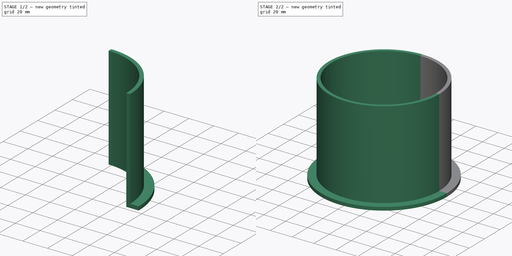
[diagram: build sequence overview — one tinted view per stage of 2, left to right]
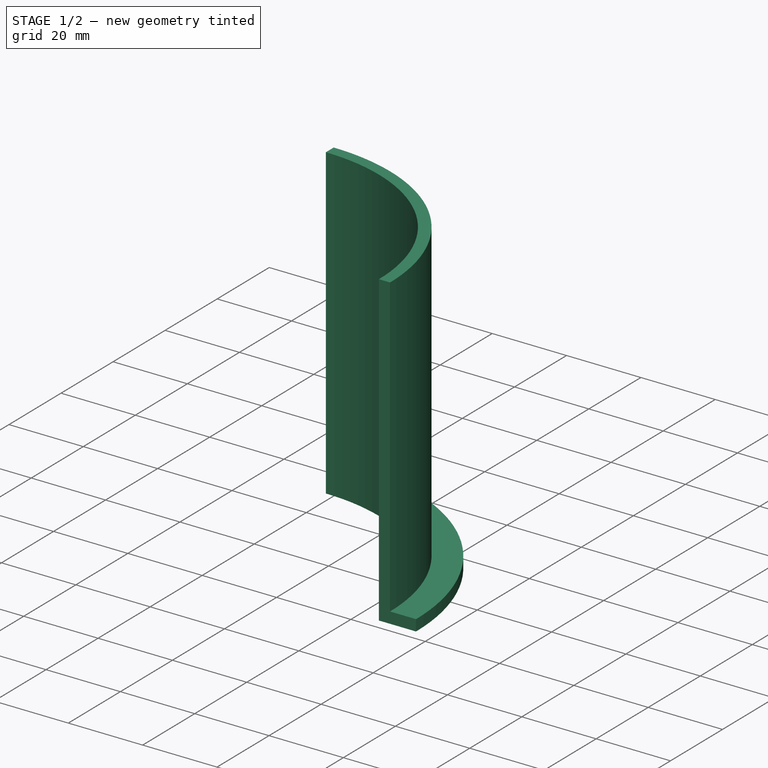
[diagram: stage 1 of 2 — iso view after this stage's code; geometry added in this stage tinted green]
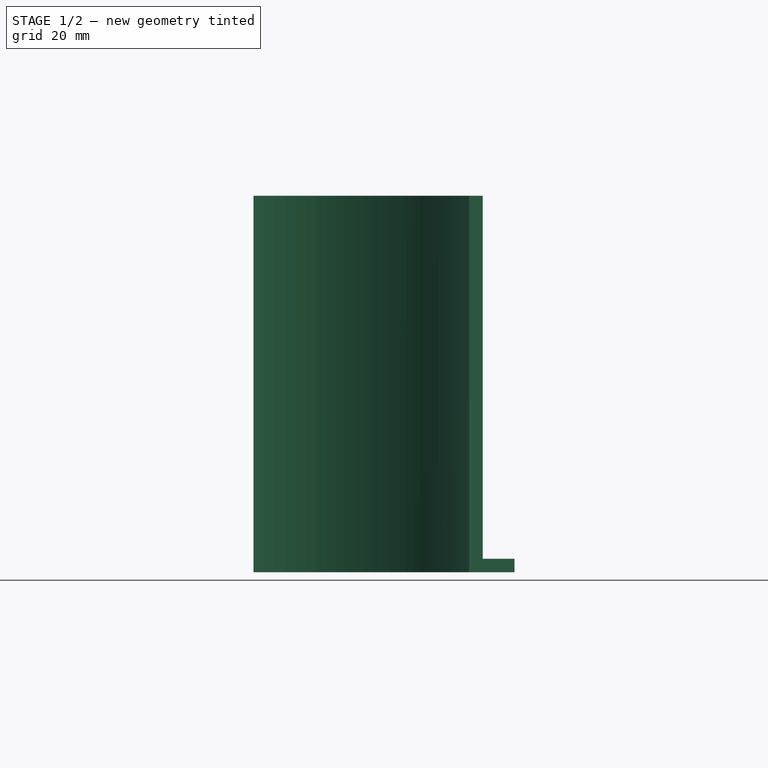
[diagram: stage 1 of 2 — front view after this stage's code; geometry added in this stage tinted green]
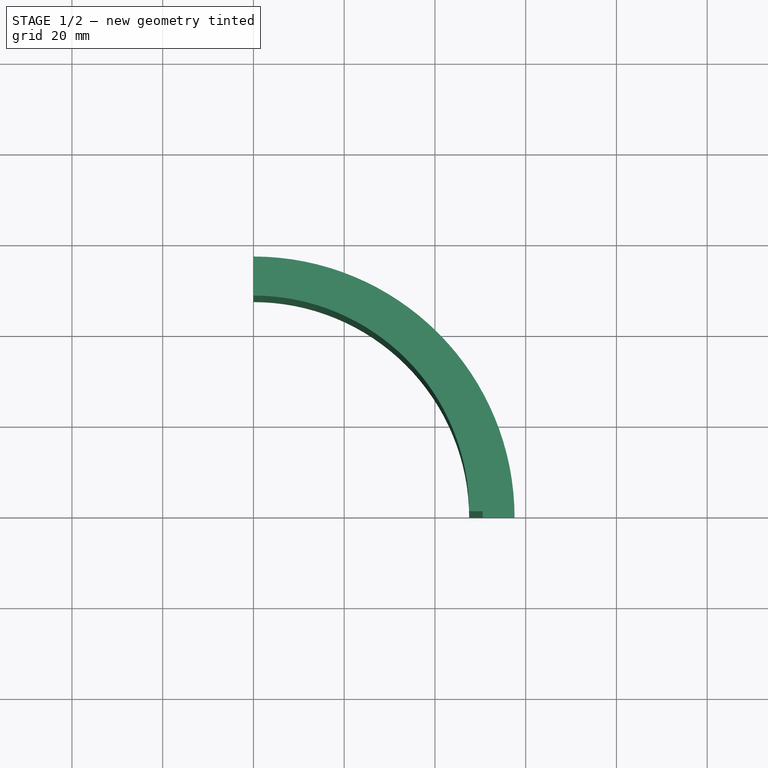
[diagram: stage 1 of 2 — top view after this stage's code; geometry added in this stage tinted green]
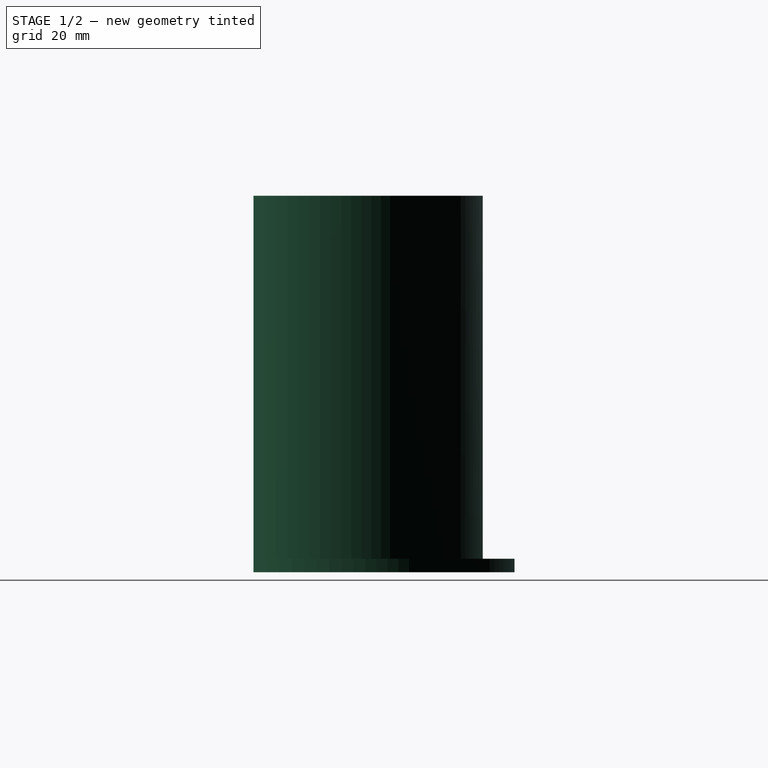
[diagram: stage 1 of 2 — right view after this stage's code; geometry added in this stage tinted green]
FCSTD DOCUMENT  (FreeCAD 0.20R29177 (Git))
Label: Кольца_кольцо
License: All rights reserved
LicenseURL: http://en.wikipedia.org/wiki/All_rights_reserved
objects: Sketcher::SketchObject×3, PartDesign::Mirrored×2, PartDesign::Revolution×1, PartDesign::MultiTransform×1, PartDesign::Body×1
note: 9 computed .brp shape members not serialized (recipe doc carries the construction recipe); baked Part::Feature solids carry a one-line shape summary decoded from their .brp

FEATURE [Sketcher::SketchObject] Sketch
  FullyConstrained = true
  MapMode = 5
  Placement = pos=(0,0,0) rot=(1,0,0;1.5708rad)
  Support = -> [XZ_Plane]
  sketch-geometry (7):
    g0: LineSegment StartX=47.55 StartY=0 StartZ=0 EndX=50.55 EndY=0 EndZ=0
    g1: LineSegment StartX=50.55 StartY=3 StartZ=0 EndX=50.55 EndY=83 EndZ=0
    g2: LineSegment StartX=50.55 StartY=83 StartZ=0 EndX=47.55 EndY=83 EndZ=0
    g3: LineSegment StartX=47.55 StartY=83 StartZ=0 EndX=47.55 EndY=0 EndZ=0
    g4: LineSegment StartX=50.55 StartY=0 StartZ=0 EndX=57.55 EndY=0 EndZ=0
    g5: LineSegment StartX=57.55 StartY=0 StartZ=0 EndX=57.55 EndY=3 EndZ=0
    g6: LineSegment StartX=57.55 StartY=3 StartZ=0 EndX=50.55 EndY=3 EndZ=0
  constraints (21):
    c: Coincident(g1,g2)
    c: Coincident(g2,g3)
    c: Coincident(g3,g0)
    c: Horizontal(g0)
    c: Horizontal(g2)
    c: Vertical(g1)
    c: Vertical(g3)
    c: PointOnObject(g0,g-1)
    c: Distance(g0,g-1) = 47.55
    c: Distance(g0) = 3
    c: Distance(g3) = 83
    c: Coincident(g0,g4)
    c: Horizontal(g4)
    c: Coincident(g4,g5)
    c: Vertical(g5)
    c: Coincident(g5,g6)
    c: Horizontal(g6)
    c: Distance(g6) = 7
    c: Distance(g5) = 3
    c: Coincident(g1,g6)
    c: PointOnObject(g0,g1)
FEATURE [PartDesign::Revolution] Revolution
  Angle = 90
  Axis = (0,-2e-16,1)
  Base = (0,0,0)
  Placement = pos=(0,0,0) rot=(1,0,0;1.5708rad)
  Profile = -> Sketch
  ReferenceAxis = -> Sketch [V_Axis]
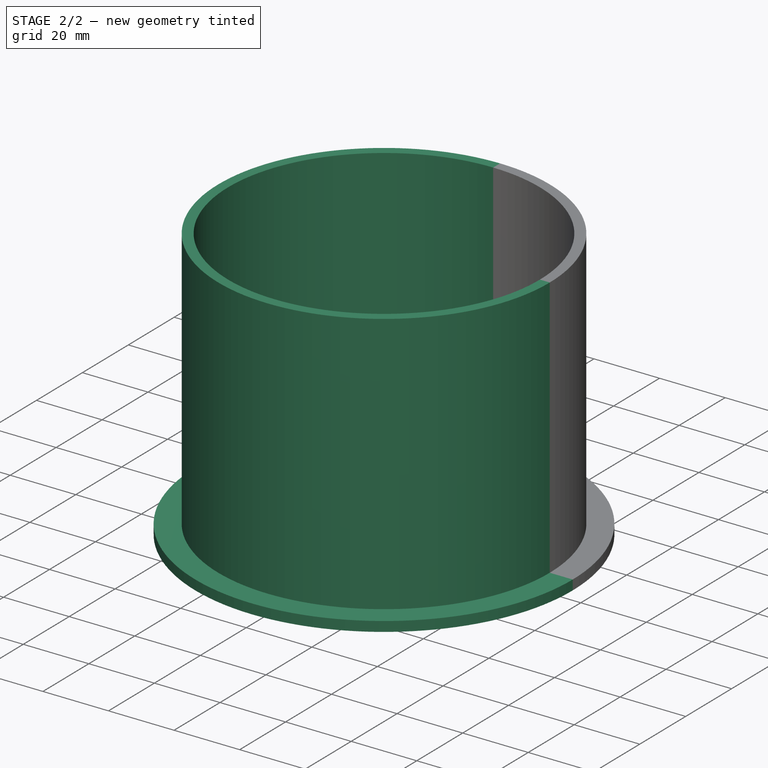
[diagram: stage 2 of 2 — iso view after this stage's code; geometry added in this stage tinted green]
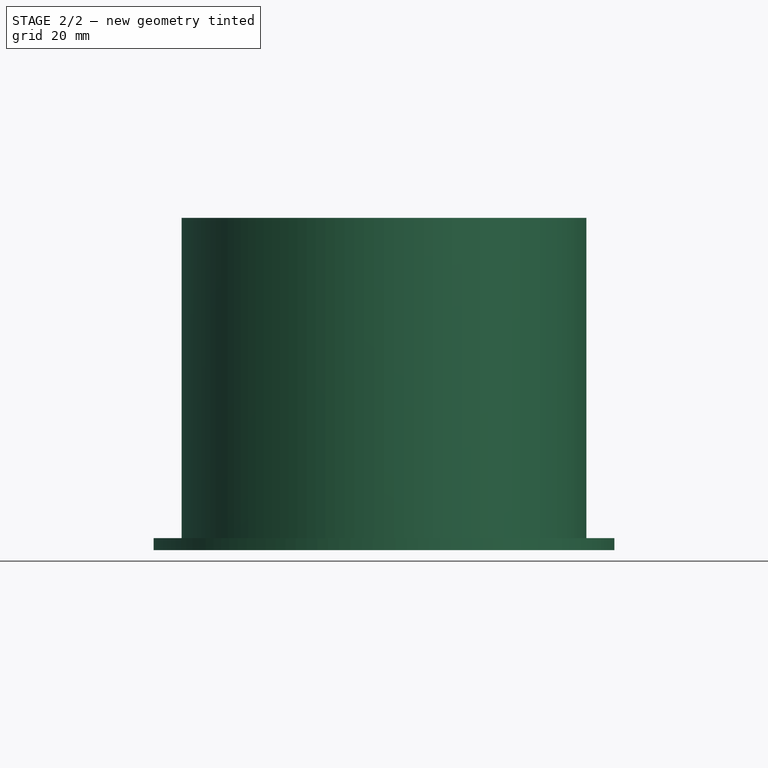
[diagram: stage 2 of 2 — front view after this stage's code; geometry added in this stage tinted green]
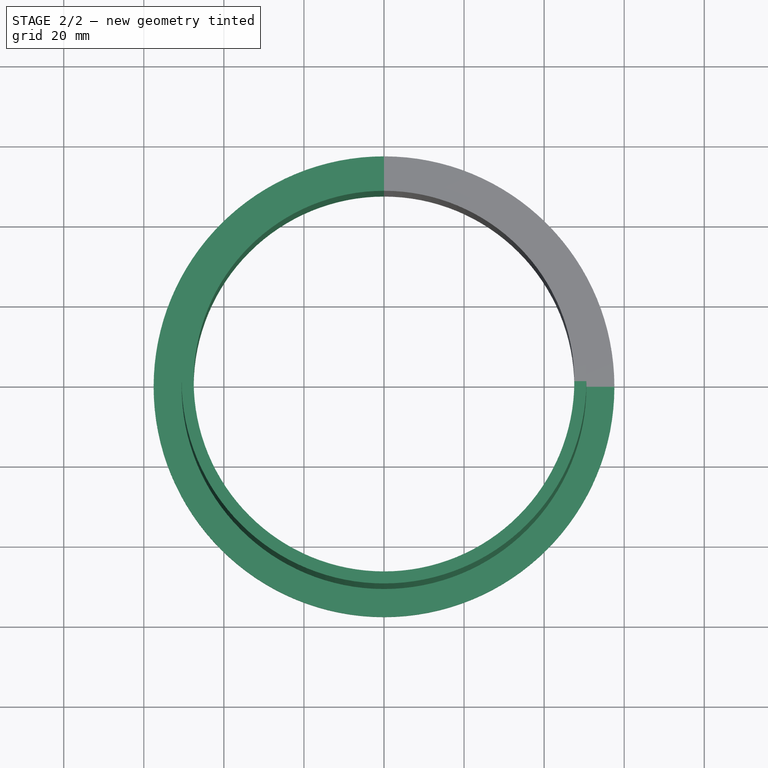
[diagram: stage 2 of 2 — top view after this stage's code; geometry added in this stage tinted green]
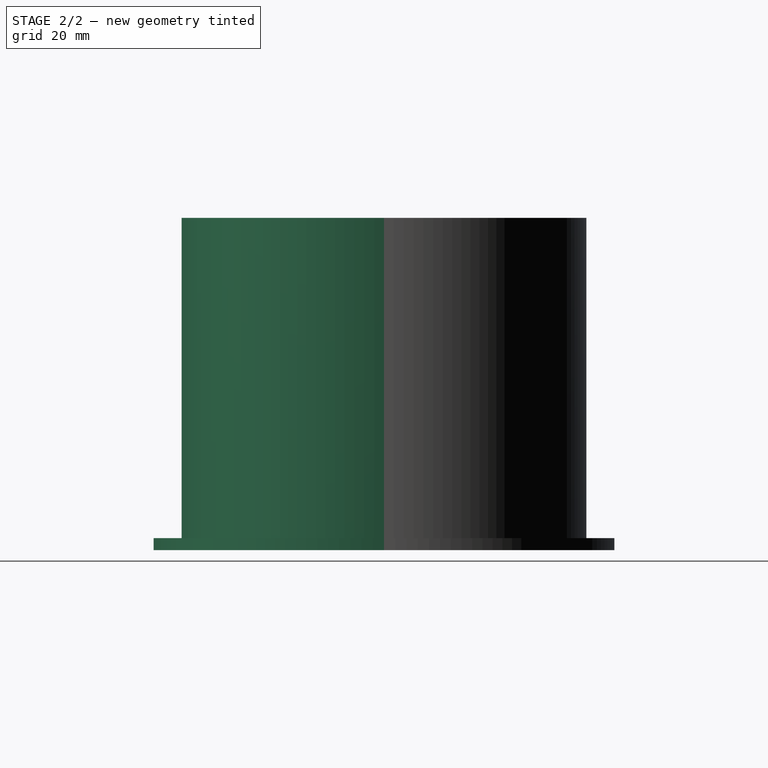
[diagram: stage 2 of 2 — right view after this stage's code; geometry added in this stage tinted green]
FEATURE [Sketcher::SketchObject] Sketch001
  FullyConstrained = true
  MapMode = 5
  Support = -> [XY_Plane]
  sketch-geometry (8):
    g0: ArcOfCircle CenterX=0 CenterY=0 CenterZ=0 NormalX=0 NormalY=0 NormalZ=1 AngleXU=0 Radius=48 StartAngle=0 EndAngle=1.5708
    g1: LineSegment StartX=0 StartY=0 StartZ=0 EndX=47.625 EndY=47.625 EndZ=0
    g2: Circle CenterX=47.625 CenterY=47.625 CenterZ=0 NormalX=0 NormalY=0 NormalZ=1 AngleXU=0 Radius=2.7
    g3: ArcOfCircle CenterX=47.625 CenterY=47.625 CenterZ=0 NormalX=0 NormalY=0 NormalZ=1 AngleXU=0 Radius=8.2 StartAngle=3.81875e-08 EndAngle=1.5708
    g4: LineSegment StartX=0 StartY=55.825 StartZ=0 EndX=47.625 EndY=55.825 EndZ=0
    g5: LineSegment StartX=55.825 StartY=47.625 StartZ=0 EndX=55.825 EndY=0 EndZ=0
    g6: LineSegment StartX=48 StartY=0 StartZ=0 EndX=55.825 EndY=0 EndZ=0
    g7: LineSegment StartX=2.9e-15 StartY=48 StartZ=0 EndX=0 EndY=55.825 EndZ=0
  constraints (23):
    c: Coincident(g0,g-1)
    c: PointOnObject(g0,g-1)
    c: PointOnObject(g0,g-2)
    c: Coincident(g1,g0)
    c: DistanceX(g1) = 47.625
    c: DistanceY(g1) = 47.625
    c: Coincident(g2,g1)
    c: Coincident(g3,g2)
    c: Diameter(g2) = 5.4
    c: Diameter(g3) = 16.4
    c: PointOnObject(g4,g-2)
    c: Coincident(g4,g3)
    c: Horizontal(g4)
    c: Coincident(g5,g3)
    c: PointOnObject(g5,g-1)
    c: Vertical(g5)
    c: Tangent(g5,g3)
    c: Tangent(g3,g4)
    c: Coincident(g6,g0)
    c: Coincident(g6,g5)
    c: Coincident(g7,g0)
    c: Coincident(g7,g4)
    c: Diameter(g0) = 96
FEATURE [PartDesign::Mirrored] Mirrored
  MirrorPlane = -> Sketch001 [V_Axis]
  Placement = pos=(0,0,0) rot=(1,0,0;1.5708rad)
FEATURE [PartDesign::Mirrored] Mirrored001
  MirrorPlane = -> Sketch001 [H_Axis]
  Placement = pos=(0,0,0) rot=(1,0,0;1.5708rad)
FEATURE [PartDesign::MultiTransform] MultiTransform
  BaseFeature = -> Revolution
  Originals = -> [Revolution]
  Placement = pos=(0,0,0) rot=(1,0,0;1.5708rad)
  Transformations = -> [Mirrored,Mirrored001]
FEATURE [Sketcher::SketchObject] Sketch002
  AttachmentOffset = pos=(0,0,0) rot=(0,1,0;0.392699rad)
  FullyConstrained = false
  MapMode = 5
  Placement = pos=(0,0,0) rot=(0.962637,0.19148,0.19148;1.60887rad)
  Support = -> [XZ_Plane]
  sketch-geometry (4):
    g0: ArcOfCircle CenterX=0 CenterY=38 CenterZ=0 NormalX=0 NormalY=0 NormalZ=1 AngleXU=0 Radius=15 StartAngle=3.14159 EndAngle=6.28319
    g1: LineSegment StartX=-15 StartY=38 StartZ=0 EndX=-15 EndY=143.504 EndZ=0
    g2: LineSegment StartX=15 StartY=38 StartZ=0 EndX=15 EndY=142.669 EndZ=0
    g3: LineSegment StartX=-15 StartY=143.504 StartZ=0 EndX=15 EndY=142.669 EndZ=0
  constraints (11):
    c: PointOnObject(g0,g-2)
    c: Coincident(g1,g0)
    c: Vertical(g1)
    c: Coincident(g2,g0)
    c: Vertical(g2)
    c: Coincident(g3,g1)
    c: Coincident(g3,g2)
    c: Tangent(g0,g2)
    c: Tangent(g0,g1)
    c: Diameter(g0) = 30
    c: Distance(g0,g-1) = 38
FEATURE [PartDesign::Body] Body
  Group = -> [Sketch,Revolution,Sketch001,MultiTransform,Mirrored,Mirrored001,Sketch002]
  Origin = -> Origin
  Tip = -> MultiTransform
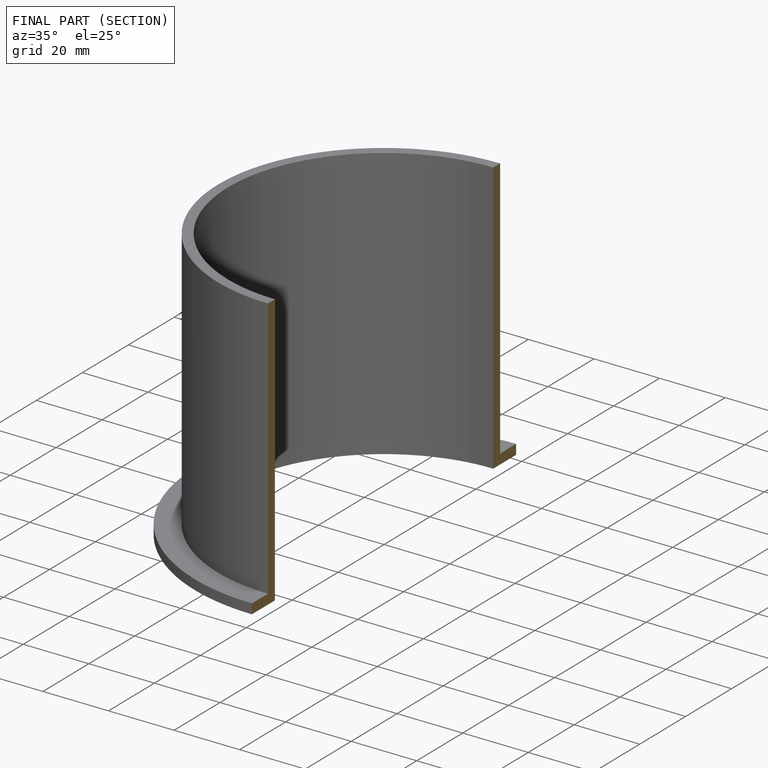
[diagram: finished part — half-section view (interior)]
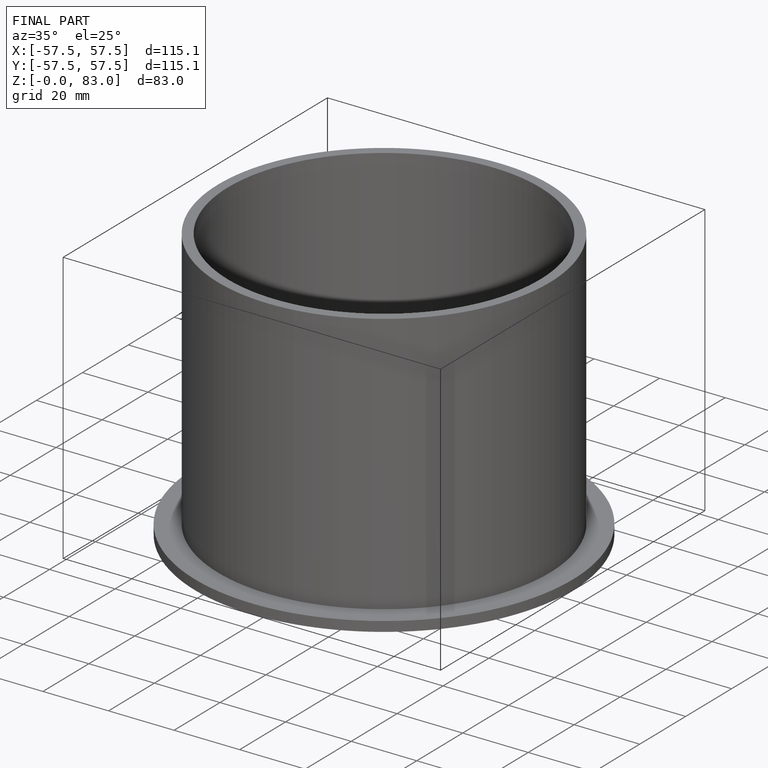
[diagram: finished part — iso view with bounding-box wireframe]
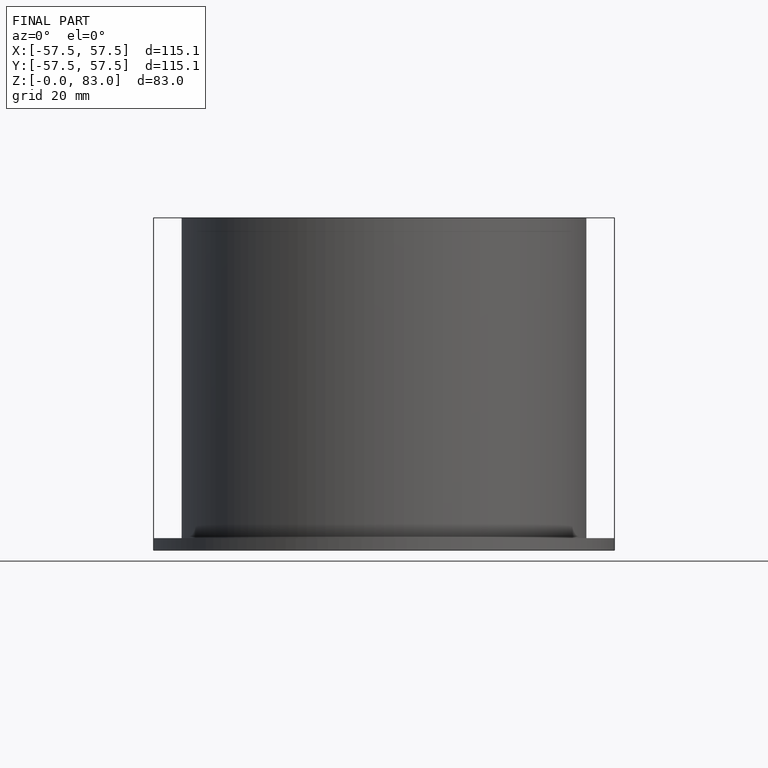
[diagram: finished part — front view with bounding-box wireframe]
